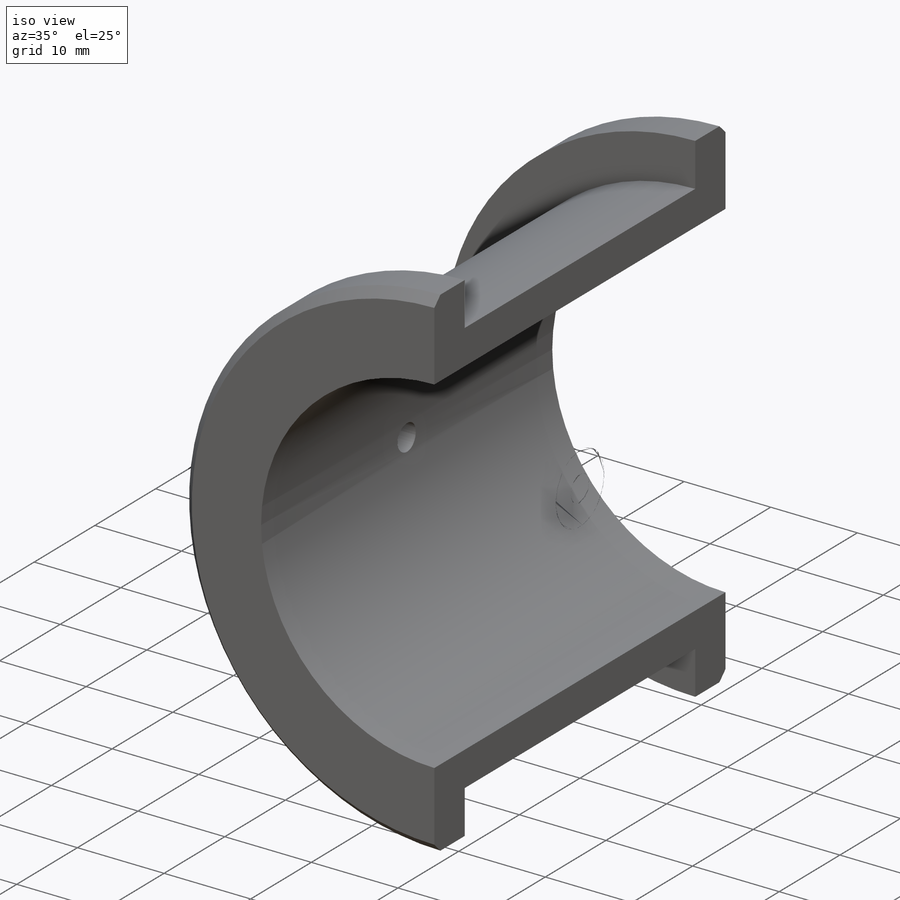
[diagram: iso view]
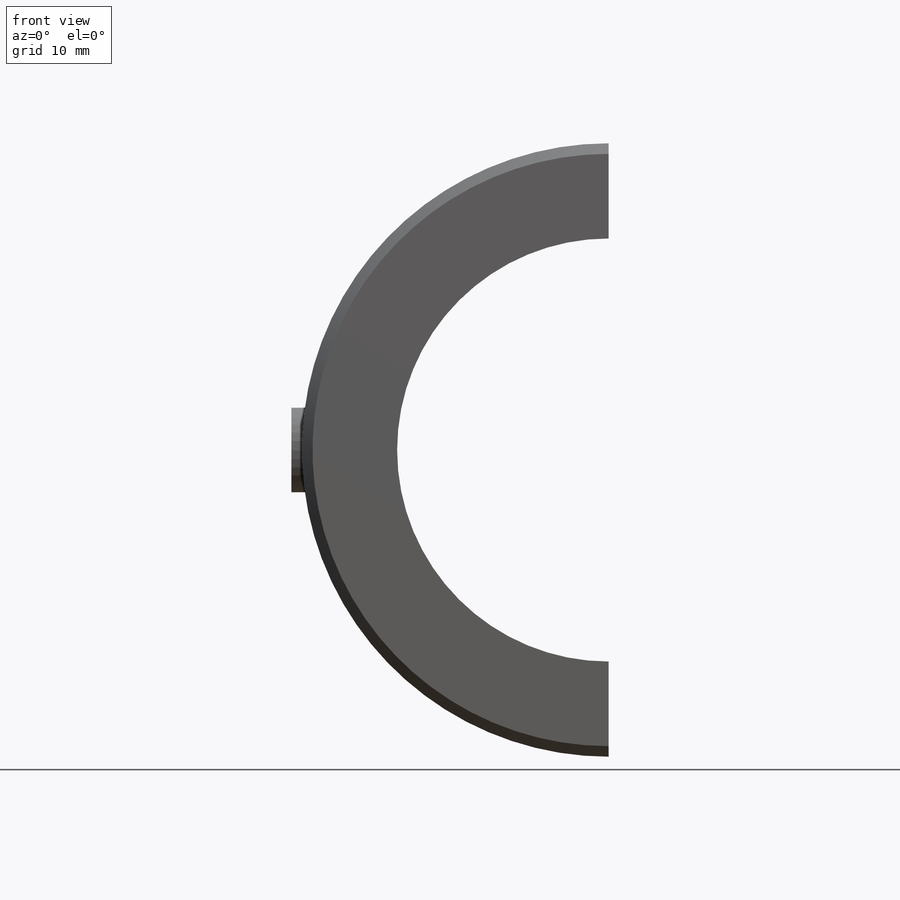
[diagram: front view]
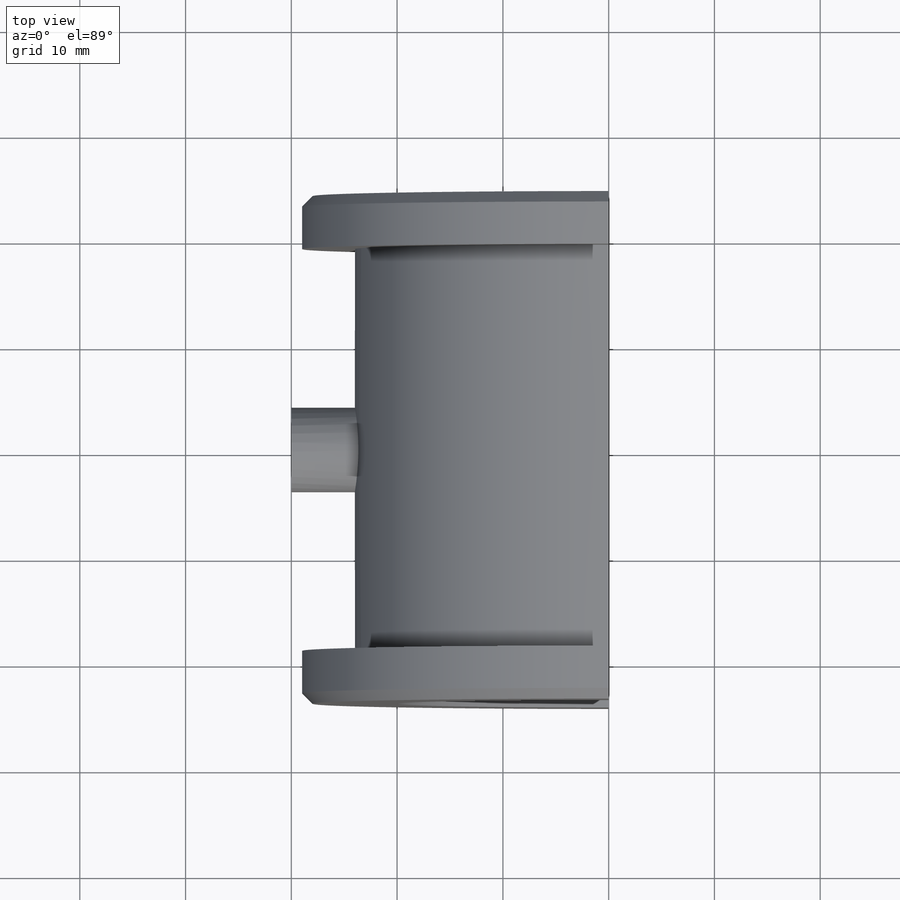
[diagram: top view]
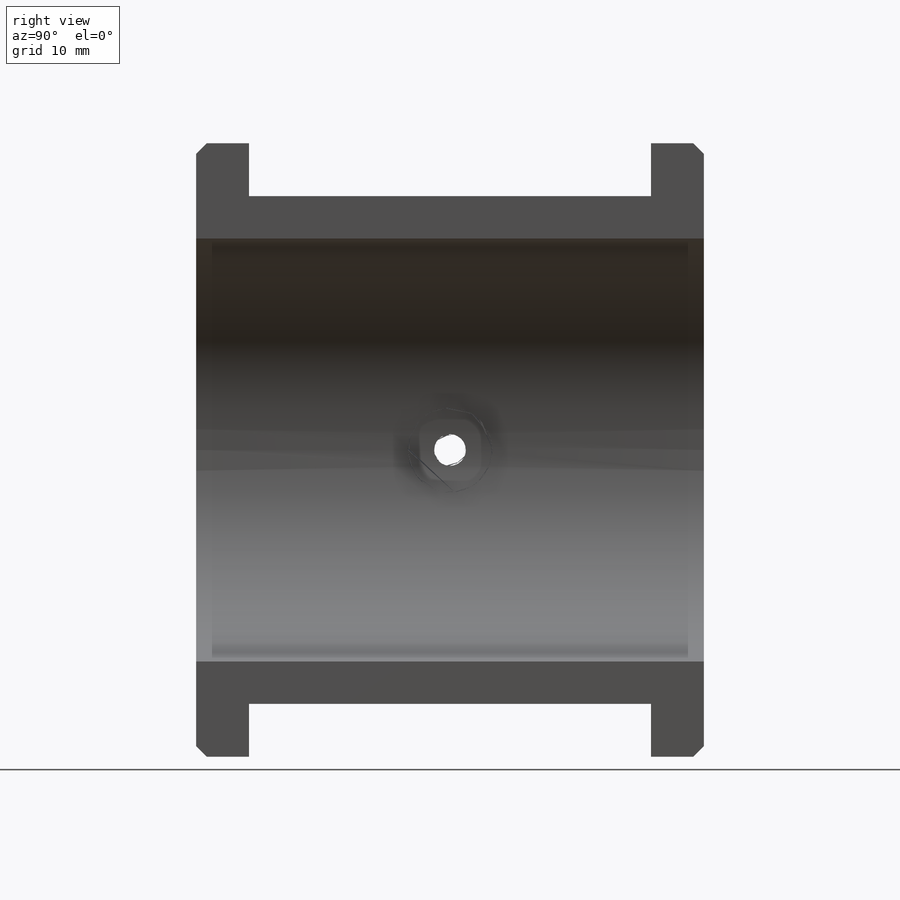
[diagram: right view]
SOLIDWORKS PART (.sldprt)
format: sldprt  version: not decoded by parser v0  size: 280,064 bytes
history: native  units: mm
features: sketch x5, plane x3, extrude x3, cut_extrude x2, material x1, mirror x1, chamfer x1 (+9 scaffold rows collapsed)
feature tree (25):
  scaffold x9  (default folders/planes/origin — collapsed)
  material  "Бронза"
  plane  "Спереди"
  plane  "Сверху"
  plane  "Справа"
  sketch  "Эскиз1"  dims[c1.D1=40.0mm c1.D2=42.0mm c1.D3=48.0mm c2.D1=40.0mm c2.D2=48.0mm]
  extrude  "Бобышка-Вытянуть1"  Depth=24mm
  sketch  "Эскиз2"  dims[D2=58.0mm D1=0.0mm]
  extrude  "Бобышка-Вытянуть2"  Depth=5mm
  mirror  "Зеркальное отражение1"
  sketch  "Эскиз5"
  cut_extrude  "Вырез-Вытянуть1"  [1 undecoded]
  chamfer  "Фаска2"  Distance=1mm Angle=45deg
  sketch  "Эскиз6"  dims[D1=8.0mm D2=3.0mm]
  extrude  "Бобышка-Вытянуть3"  Depth=30mm
  cut_extrude  "Вырез-Вытянуть2"  [1 undecoded]
  sketch  "Эскиз6<2>"
decode coverage: 7 of 12 modeling features carry decoded parameters
note: 2 parameter values undecoded
note: suppression state not decoded; provenance and decode notes live in map.json
